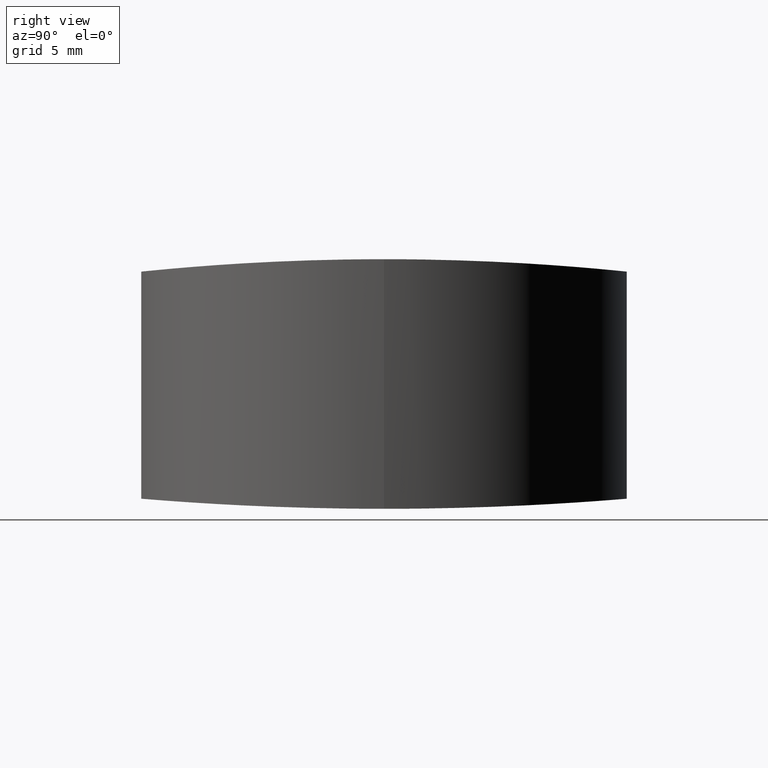
[diagram: clean part render]
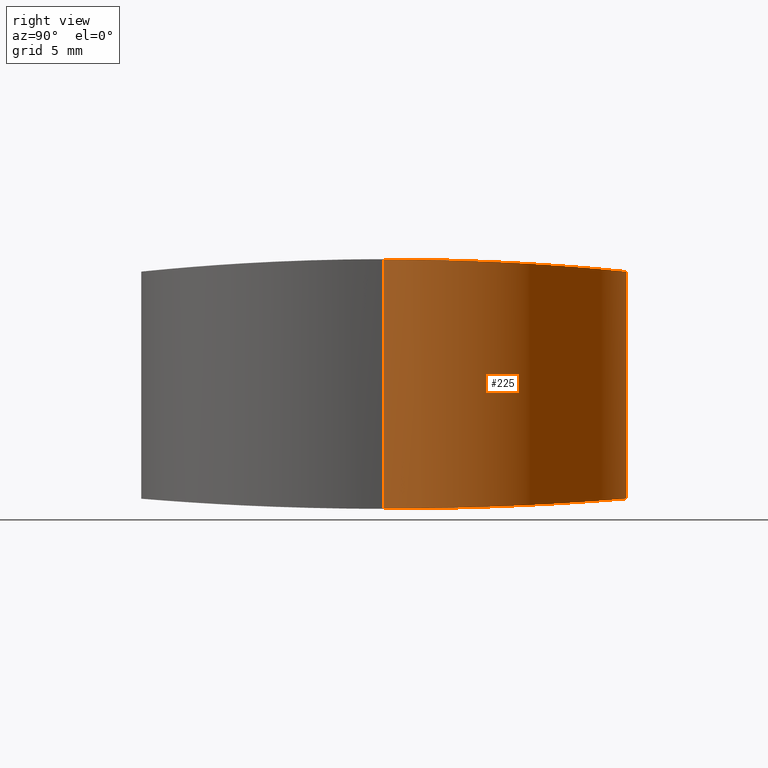
[diagram: same view with one face highlighted and labeled with its STEP entity id]
A machine part, right view. The second image highlights one B-rep face of the part: STEP entity #225.
In plain terms, the highlighted cylindrical surface (partial cylindrical patch) has radius 11.7 mm, axis along (-0, -0, 1).
Its self-contained STEP definition (entity closure, byte-faithful):
#3 = EDGE_CURVE ( 'NONE', #56, #81, #285, .T. ) ;
#6 = CARTESIAN_POINT ( 'NONE',  ( 3.982995561547500785, 8.802627526571223271, -11.72419075248639686 ) ) ;
#8 = CARTESIAN_POINT ( 'NONE',  ( 13.23733871564719067, 11.62414453370664624, -11.51839965430079715 ) ) ;
#10 = CARTESIAN_POINT ( 'NONE',  ( 0.07583883942204949768, 1.537218956647703028, -11.99362423848649684 ) ) ;
#12 = CARTESIAN_POINT ( 'NONE',  ( 21.85655647599278595, 5.858164344078640617, -11.87926018310879606 ) ) ;
#13 = CARTESIAN_POINT ( 'NONE',  ( 23.39999999999999858, 0.000000000000000000, 0.000000000000000000 ) ) ;
#14 = CARTESIAN_POINT ( 'NONE',  ( 0.6200715280266766438, 3.777770137074502710, -11.94967941558338254 ) ) ;
#16 = FACE_OUTER_BOUND ( 'NONE', #342, .T. ) ;
#18 = DIRECTION ( 'NONE',  ( 1.000000000000000000, 0.000000000000000000, 0.000000000000000000 ) ) ;
#21 = DIRECTION ( 'NONE',  ( -0.000000000000000000, -0.000000000000000000, 1.000000000000000000 ) ) ;
#27 = CARTESIAN_POINT ( 'NONE',  ( 17.55875116828418925, 10.15621393453877985, -0.4515557225609371783 ) ) ;
#29 = CARTESIAN_POINT ( 'NONE',  ( 13.23317778370108577, 11.62412662214878445, -0.5928285361961103117 ) ) ;
#30 = CARTESIAN_POINT ( 'NONE',  ( 23.39999999999999858, -1.734723475976807094E-14, -12.00000000000002842 ) ) ;
#39 = CARTESIAN_POINT ( 'NONE',  ( 12.47301215958805720, 11.69999035556283218, -11.51200029168871097 ) ) ;
#41 = CARTESIAN_POINT ( 'NONE',  ( 18.84891339696278578, 9.293760770083288492, -11.69293796382826756 ) ) ;
#48 = AXIS2_PLACEMENT_3D ( 'NONE', #271, #21, #18 ) ;
#53 = CARTESIAN_POINT ( 'NONE',  ( 9.028654702144425670, 11.39747696654536924, -0.5699472807666619012 ) ) ;
#55 = CARTESIAN_POINT ( 'NONE',  ( 10.92701351306280522, 11.70000479672055960, -0.6007132732841652389 ) ) ;
#56 = VERTEX_POINT ( 'NONE', #92 ) ;
#57 = EDGE_CURVE ( 'NONE', #56, #189, #121, .T. ) ;
#61 = CARTESIAN_POINT ( 'NONE',  ( 2.400120778135727519E-15, -1.591439800476566529E-14, -12.00000000000002487 ) ) ;
#63 = CARTESIAN_POINT ( 'NONE',  ( 7.575573302874869519, 10.95563577515336995, -11.57228736914585987 ) ) ;
#65 = CARTESIAN_POINT ( 'NONE',  ( 1.565426281899078509, 5.858907706403404525, -11.87819331356852892 ) ) ;
#67 = CARTESIAN_POINT ( 'NONE',  ( 17.55894296685362832, 10.13455308222904705, -11.63412722221021944 ) ) ;
#80 = CARTESIAN_POINT ( 'NONE',  ( 15.82522965544652394, 10.95533275989315847, -0.5264124227938457024 ) ) ;
#81 = VERTEX_POINT ( 'NONE', #61 ) ;
#82 = CARTESIAN_POINT ( 'NONE',  ( 10.16255417020305885, 11.62413557791161800, -0.5928260903456249453 ) ) ;
#83 = CARTESIAN_POINT ( 'NONE',  ( 15.46008770008044131, 11.08598889444955482, -0.5391162524112173005 ) ) ;
#86 = CARTESIAN_POINT ( 'NONE',  ( 0.8779362651289264186, 4.495236254901521455, -11.92939142474985559 ) ) ;
#90 = CARTESIAN_POINT ( 'NONE',  ( 19.43711588047457184, 8.809561870354297497, -11.72458239256462065 ) ) ;
#92 = CARTESIAN_POINT ( 'NONE',  ( 23.39999999999999858, -1.734723475976807094E-14, -12.00000000000002842 ) ) ;
#94 = CARTESIAN_POINT ( 'NONE',  ( 15.47784711752203357, 11.07990198258445602, -11.56247997843347264 ) ) ;
#107 = CARTESIAN_POINT ( 'NONE',  ( 5.509062355880049999, 9.935291775809005799, -0.4326467589744427689 ) ) ;
#108 = CARTESIAN_POINT ( 'NONE',  ( 20.99365648191689004, 7.149046933508472534, -0.2221153666618243816 ) ) ;
#109 = CARTESIAN_POINT ( 'NONE',  ( 3.962884594240894121, 8.809545878192095003, -0.3388948439820752001 ) ) ;
#110 = CARTESIAN_POINT ( 'NONE',  ( 23.00881916514715542, 3.024562361228710916, -11.96792190223194119 ) ) ;
#119 = CARTESIAN_POINT ( 'NONE',  ( 21.22048826543705857, 6.811478211133129790, -11.83515225822453587 ) ) ;
#121 = LINE ( 'NONE', #267, #202 ) ;
#124 = CARTESIAN_POINT ( 'NONE',  ( 16.88432592861272141, 10.49567260976044736, -11.60754310520130694 ) ) ;
#128 = LINE ( 'NONE', #178, #250 ) ;
#130 = CARTESIAN_POINT ( 'NONE',  ( 0.07586513507690043068, 1.533118974322451589, -0.007840524927638588965 ) ) ;
#133 = CARTESIAN_POINT ( 'NONE',  ( 8.653700171108251737, 11.30294017466843215, -0.5604780243197567957 ) ) ;
#135 = CARTESIAN_POINT ( 'NONE',  ( 19.70074887931697916, 8.545365885079128532, -0.3197327694840387258 ) ) ;
#136 = ORIENTED_EDGE ( 'NONE', *, *, #297, .T. ) ;
#137 = CARTESIAN_POINT ( 'NONE',  ( 2.179863634462236188, 6.811968760865259043, -0.2028307600976550218 ) ) ;
#138 = CARTESIAN_POINT ( 'NONE',  ( 23.39999999999999147, 0.7728711628131414990, -12.00000000000002665 ) ) ;
#141 = CARTESIAN_POINT ( 'NONE',  ( 17.89080433049062790, 9.935375168748358021, -11.64843659956239463 ) ) ;
#143 = DIRECTION ( 'NONE',  ( -0.000000000000000000, -0.000000000000000000, 1.000000000000000000 ) ) ;
#144 = CARTESIAN_POINT ( 'NONE',  ( 1.734723475976807094E-15, 0.000000000000000000, -2.775557561562891351E-14 ) ) ;
#145 = CARTESIAN_POINT ( 'NONE',  ( 10.92727981659755798, 11.70000964261554799, -11.51199867998030335 ) ) ;
#148 = CARTESIAN_POINT ( 'NONE',  ( 20.50261246364091505, 7.717021351404852680, -11.78822673520258313 ) ) ;
#154 = CYLINDRICAL_SURFACE ( 'NONE', #48, 11.69999999999999929 ) ;
#156 = CARTESIAN_POINT ( 'NONE',  ( 23.39999999999999858, 0.000000000000000000, 0.000000000000000000 ) ) ;
#161 = CARTESIAN_POINT ( 'NONE',  ( 14.35454935710454727, 11.40125458762065414, -0.5703269592500258556 ) ) ;
#162 = CARTESIAN_POINT ( 'NONE',  ( 2.409216876242874950, 7.121773319223103194, -0.2218129154057481012 ) ) ;
#165 = CARTESIAN_POINT ( 'NONE',  ( 0.3024493376041800796, 2.671026038821413984, -11.97511698997220186 ) ) ;
#170 = CARTESIAN_POINT ( 'NONE',  ( 14.37112619128460977, 11.39752698996652924, -11.53696698724230885 ) ) ;
#172 = CARTESIAN_POINT ( 'NONE',  ( 0.3969480738167474043, 3.045879069599135569, -11.96745749760723498 ) ) ;
#174 = CARTESIAN_POINT ( 'NONE',  ( 22.65560668606557471, 4.124503458994857930, -11.93989436517893310 ) ) ;
#178 = CARTESIAN_POINT ( 'NONE',  ( 1.734723475976807094E-15, -1.591439800476566845E-14, -23.39999999999999858 ) ) ;
#185 = CARTESIAN_POINT ( 'NONE',  ( 16.88722296981794457, 10.51522991769792448, -0.4845851749743647074 ) ) ;
#187 = CARTESIAN_POINT ( 'NONE',  ( 5.840822757568201240, 10.13441499364734177, -0.4502636698667806248 ) ) ;
#189 = VERTEX_POINT ( 'NONE', #156 ) ;
#192 = CARTESIAN_POINT ( 'NONE',  ( 19.41729507277802824, 8.802366688191272104, -0.3393592820513068320 ) ) ;
#193 = ORIENTED_EDGE ( 'NONE', *, *, #238, .T. ) ;
#196 = CARTESIAN_POINT ( 'NONE',  ( 2.424020065497973457E-15, 0.7728792911759192474, -12.00000000000002665 ) ) ;
#199 = CARTESIAN_POINT ( 'NONE',  ( 20.99117683622786146, 7.121266581235918380, -11.81972969374128368 ) ) ;
#202 = VECTOR ( 'NONE', #143, 1000.000000000000000 ) ;
#203 = CARTESIAN_POINT ( 'NONE',  ( 22.52182918831537251, 4.495796117918829715, -0.08687178053423470769 ) ) ;
#204 = CARTESIAN_POINT ( 'NONE',  ( 14.74597115083577137, 11.30302687492712010, -11.54465041235039102 ) ) ;
#206 = CARTESIAN_POINT ( 'NONE',  ( 8.675532182843904039, 11.30884462609598096, -11.54418052236263748 ) ) ;
#207 = CARTESIAN_POINT ( 'NONE',  ( 23.39999999999999858, 0.7730775123008858385, 2.743445601384745767E-17 ) ) ;
#212 = CARTESIAN_POINT ( 'NONE',  ( 1.734723475976807094E-15, 0.000000000000000000, -2.775557561562891351E-14 ) ) ;
#214 = CARTESIAN_POINT ( 'NONE',  ( 0.3913381604001262004, 3.025157802228426451, -0.03946954025045218417 ) ) ;
#218 = CARTESIAN_POINT ( 'NONE',  ( 1.184762323799809058, 5.187208748393875801, -0.1156270152500745857 ) ) ;
#219 = CARTESIAN_POINT ( 'NONE',  ( 21.83439427511706654, 5.859213009914259196, -0.1498548516609604642 ) ) ;
#220 = CARTESIAN_POINT ( 'NONE',  ( 1.543782363557342441, 5.858745820648566749, -0.1485549043856242424 ) ) ;
#221 = ORIENTED_EDGE ( 'NONE', *, *, #3, .T. ) ;
#222 = B_SPLINE_CURVE_WITH_KNOTS ( 'NONE', 3,
 ( #212, #331, #130, #245, #214, #333, #363, #218, #220, #137, #162, #336, #283, #109, #364, #107, #187, #339, #312, #309, #133, #53, #82, #55, #341, #29, #161, #249, #83, #80, #185, #27, #254, #281, #192, #135, #252, #108, #362, #219, #344, #203, #266, #295, #292, #322, #207, #13 ),
 .UNSPECIFIED., .F., .F.,
 ( 4, 2, 2, 2, 2, 2, 2, 2, 2, 1, 2, 2, 2, 2, 2, 2, 2, 2, 2, 2, 2, 1, 2, 2, 4 ),
 ( 0.000000000000000000, 0.002286163231313159076, 0.003429244846969739698, 0.004572326462626319886, 0.006858489693939481997, 0.008001571309596059584, 0.009144652925252639772, 0.01143081615656580362, 0.01257389777222238207, 0.01371697938787896399, 0.01486006100353554245, 0.01600314261919211917, 0.01828930585050527607, 0.02057546908181842951, 0.02171855069747500797, 0.02286163231313158295, 0.02514779554444473639, 0.02629087716010131484, 0.02743395877575788636, 0.02972012200707102592, 0.03086320362272760090, 0.03200628523838416895, 0.03314936685404074046, 0.03429244846969731197, 0.03657861170101045500 ),
 .UNSPECIFIED. ) ;
#225 = ADVANCED_FACE ( 'NONE', ( #16 ), #154, .T. ) ;
#227 = CARTESIAN_POINT ( 'NONE',  ( 20.24553979347370003, 8.000567808726462005, -11.77228481284947748 ) ) ;
#233 = CARTESIAN_POINT ( 'NONE',  ( 2.400120778135727519E-15, -1.591439800476566529E-14, -12.00000000000002487 ) ) ;
#238 = EDGE_CURVE ( 'NONE', #81, #366, #128, .T. ) ;
#242 = DIRECTION ( 'NONE',  ( -0.000000000000000000, -0.000000000000000000, 1.000000000000000000 ) ) ;
#245 = CARTESIAN_POINT ( 'NONE',  ( 0.2987343659434484322, 2.654502444624603275, -0.03023248949577795469 ) ) ;
#249 = CARTESIAN_POINT ( 'NONE',  ( 14.72520060699774724, 11.30865025401243429, -0.5610461686817673765 ) ) ;
#250 = VECTOR ( 'NONE', #242, 1000.000000000000000 ) ;
#252 = CARTESIAN_POINT ( 'NONE',  ( 20.50952394314282401, 7.737139707557232349, -0.2610277065373203254 ) ) ;
#254 = CARTESIAN_POINT ( 'NONE',  ( 18.51196396589719129, 9.520139631923248302, -0.3971705177279316046 ) ) ;
#255 = CARTESIAN_POINT ( 'NONE',  ( 23.32417234253878391, 1.532767790762665117, -11.99362786624891086 ) ) ;
#257 = CARTESIAN_POINT ( 'NONE',  ( 22.78623347452534276, 3.759361080725645898, -11.95017716355226867 ) ) ;
#259 = CARTESIAN_POINT ( 'NONE',  ( 5.841883407253506633, 10.15658483221741726, -11.63305987221557558 ) ) ;
#263 = CARTESIAN_POINT ( 'NONE',  ( 1.764606549602166563, 6.190775430006238089, -11.86390746951188646 ) ) ;
#266 = CARTESIAN_POINT ( 'NONE',  ( 22.77974269341509483, 3.778319721124463904, -0.06191118707211194783 ) ) ;
#267 = CARTESIAN_POINT ( 'NONE',  ( 23.39999999999999858, -1.734723475976807094E-14, -23.39999999999999858 ) ) ;
#271 = CARTESIAN_POINT ( 'NONE',  ( 11.69999999999999929, -1.734723475976807094E-14, -23.39999999999999858 ) ) ;
#281 = CARTESIAN_POINT ( 'NONE',  ( 18.82176628959698306, 9.290788312627901391, -0.3781588599475181334 ) ) ;
#283 = CARTESIAN_POINT ( 'NONE',  ( 3.154649380230421407, 8.000765346559356672, -0.2801894637638149277 ) ) ;
#284 = CARTESIAN_POINT ( 'NONE',  ( 23.10138913313453912, 2.653962277840836048, -11.97542915491631454 ) ) ;
#285 = B_SPLINE_CURVE_WITH_KNOTS ( 'NONE', 3,
 ( #30, #138, #255, #284, #110, #257, #174, #351, #12, #119, #199, #148, #227, #90, #41, #141, #67, #124, #320, #94, #204, #170, #8, #39, #145, #293, #289, #206, #326, #63, #323, #259, #345, #343, #6, #296, #287, #349, #263, #65, #317, #86, #14, #172, #165, #10, #196, #233 ),
 .UNSPECIFIED., .F., .F.,
 ( 4, 2, 2, 2, 2, 2, 2, 2, 2, 1, 2, 2, 2, 2, 2, 2, 2, 2, 2, 2, 2, 1, 2, 2, 4 ),
 ( 0.05485577372979317384, 0.05714143696500378206, 0.05828426858260908616, 0.05942710020021439027, 0.06171276343542499154, 0.06285559505303030259, 0.06399842667063559976, 0.06628408990584620797, 0.06742692152345150514, 0.06856975314105681618, 0.06971258475866212723, 0.07085541637626742439, 0.07314107961147803261, 0.07542674284668864082, 0.07656957446429395187, 0.07771240608189924903, 0.07999806931710987112, 0.08114090093471516829, 0.08228373255232046546, 0.08456939578753107367, 0.08571222740513637084, 0.08685505902274168188, 0.08799789064034699293, 0.08914072225795229010, 0.09142638549316289831 ),
 .UNSPECIFIED. ) ;
#287 = CARTESIAN_POINT ( 'NONE',  ( 2.890437360382252407, 7.737116149366350726, -11.78784166734642191 ) ) ;
#289 = CARTESIAN_POINT ( 'NONE',  ( 9.046138238676569188, 11.40141271651924093, -11.53664998654348750 ) ) ;
#292 = CARTESIAN_POINT ( 'NONE',  ( 23.09746483128817829, 2.671396723097066328, -0.03061267240350131272 ) ) ;
#293 = CARTESIAN_POINT ( 'NONE',  ( 10.16735118020372042, 11.62418875955066788, -11.51839322469982996 ) ) ;
#295 = CARTESIAN_POINT ( 'NONE',  ( 23.00292686288608479, 3.046349027864588610, -0.04003755478588138378 ) ) ;
#296 = CARTESIAN_POINT ( 'NONE',  ( 3.699444525946414153, 8.545551600635532097, -11.74013840316434987 ) ) ;
#297 = EDGE_CURVE ( 'NONE', #366, #189, #222, .T. ) ;
#309 = CARTESIAN_POINT ( 'NONE',  ( 7.921725604611242311, 11.07975820281242818, -0.5385086668670304721 ) ) ;
#312 = CARTESIAN_POINT ( 'NONE',  ( 7.204245810011861373, 10.82184674336874863, -0.5134457270086439928 ) ) ;
#317 = CARTESIAN_POINT ( 'NONE',  ( 1.204303208327427877, 5.184277463354874271, -11.90472650404871580 ) ) ;
#320 = CARTESIAN_POINT ( 'NONE',  ( 16.19529850685433203, 10.82203715852323711, -11.58282321354267985 ) ) ;
#322 = CARTESIAN_POINT ( 'NONE',  ( 23.32412736850367097, 1.537505463828513053, -0.007844571954060122407 ) ) ;
#323 = CARTESIAN_POINT ( 'NONE',  ( 6.513493404900872363, 10.51558617529760298, -11.60624191533891292 ) ) ;
#326 = CARTESIAN_POINT ( 'NONE',  ( 7.940721809308531220, 11.08626176126039198, -11.56197651439197749 ) ) ;
#331 = CARTESIAN_POINT ( 'NONE',  ( 2.881606086559129754E-15, 0.7730655348208287370, -9.529120656610878815E-19 ) ) ;
#333 = CARTESIAN_POINT ( 'NONE',  ( 0.6139992893570285215, 3.760053267498937757, -0.06130349122854715505 ) ) ;
#336 = CARTESIAN_POINT ( 'NONE',  ( 2.897645298204759357, 7.717308984799781335, -0.2605729822216467095 ) ) ;
#339 = CARTESIAN_POINT ( 'NONE',  ( 6.515305621783569201, 10.49548805088098646, -0.4829993718253916546 ) ) ;
#340 = ORIENTED_EDGE ( 'NONE', *, *, #57, .F. ) ;
#341 = CARTESIAN_POINT ( 'NONE',  ( 12.47313168739363753, 11.69999520282890693, -0.6007122855224936719 ) ) ;
#342 = EDGE_LOOP ( 'NONE', ( #221, #193, #136, #340 ) ) ;
#343 = CARTESIAN_POINT ( 'NONE',  ( 4.578759834622079694, 9.291197306141617318, -11.69266591437509462 ) ) ;
#344 = CARTESIAN_POINT ( 'NONE',  ( 22.19546878408191404, 5.184733302826320944, -0.1172146429855916994 ) ) ;
#345 = CARTESIAN_POINT ( 'NONE',  ( 4.888553610708962438, 9.520511249553457844, -11.67722724001259671 ) ) ;
#349 = CARTESIAN_POINT ( 'NONE',  ( 2.406230533546055650, 7.148903612465109525, -11.81946429229798134 ) ) ;
#351 = CARTESIAN_POINT ( 'NONE',  ( 22.21555638760216311, 5.186565379059743464, -11.90602327504407043 ) ) ;
#362 = CARTESIAN_POINT ( 'NONE',  ( 21.63527044732452964, 6.190971802057035234, -0.1674275286744833502 ) ) ;
#363 = CARTESIAN_POINT ( 'NONE',  ( 0.7446560148524464795, 4.125200318007558486, -0.07395498977492999393 ) ) ;
#364 = CARTESIAN_POINT ( 'NONE',  ( 4.550982262943292334, 9.293679127805530626, -0.3778490196960880843 ) ) ;
#366 = VERTEX_POINT ( 'NONE', #144 ) ;